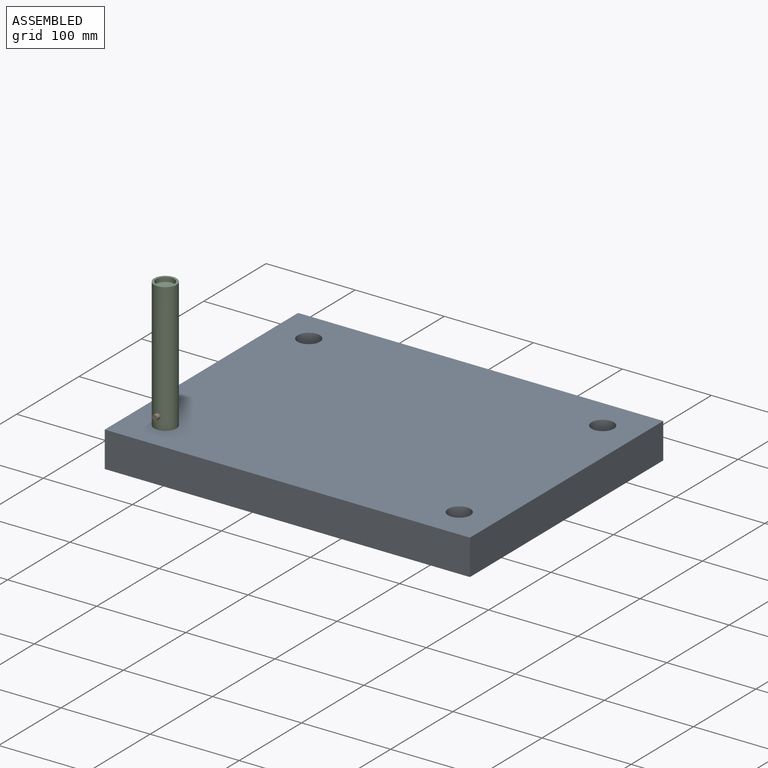
[diagram: assembled view]
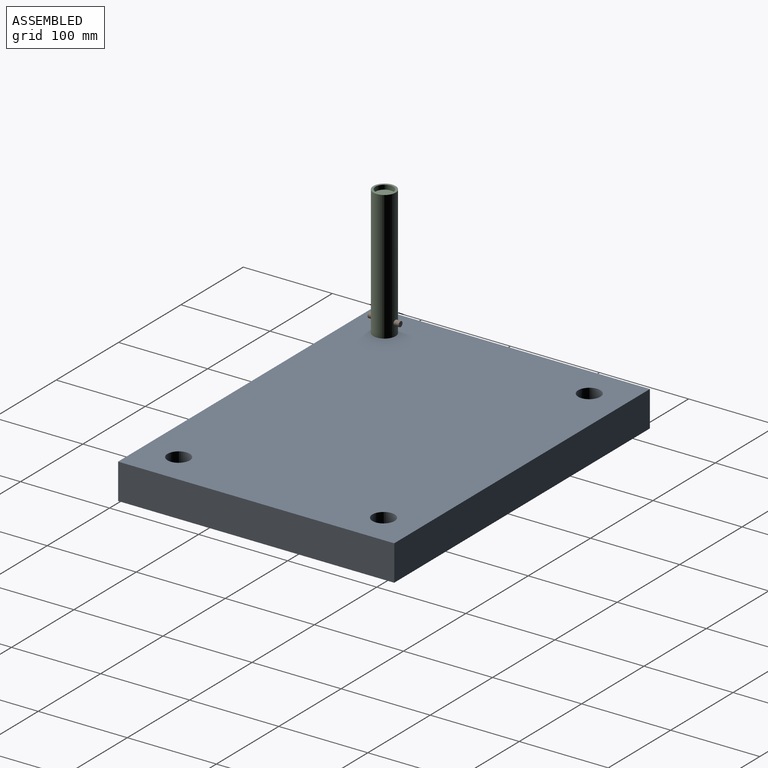
[diagram: assembled view, second angle]
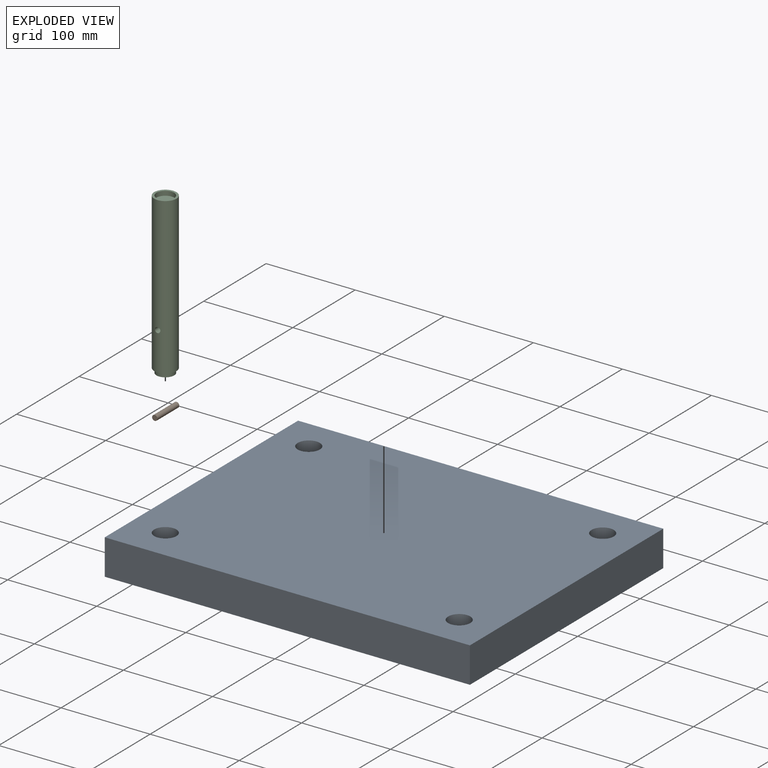
[diagram: exploded view]
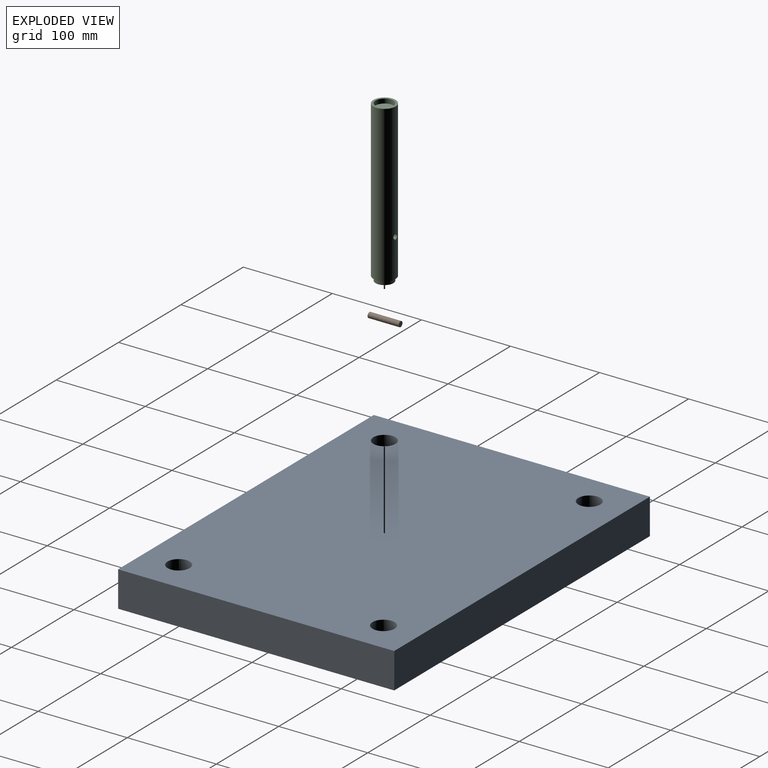
[diagram: exploded view, second angle]
ASSEMBLY  parts=3 mates=2
PART A: 111 faces, bbox 410x310x40 mm
  f0: plane 17.87x17.87mm, normal (0,0,-1), area 159.6mm2, adj f1,f2,f110
  f1: plane 35x17.87mm, normal (0,1,0), area 625.4mm2, adj f0,f2,f63,f110
  f2: plane 35x17.87mm, normal (-1,0,0), area 625.4mm2, adj f0,f1,f63,f110
  f3: plane 122.93x122.93mm, normal (0,0,-1), area 5393.1mm2, adj f4,f5,f8,f9,f104,f105,f107,f109
  f4: plane 35x31.48mm, normal (0,1,0), area 1101.9mm2, adj f3,f63,f107,f109
  f5: cylinder r=17.5mm len=35mm, axis (0,0,-1), area 2739mm2, adj f3,f63,f105,f107
  f6: plane 49.35x35.41mm, normal (0,0,-1), area 776.5mm2, adj f7,f67,f106,f108
  f7: plane 35x31.48mm, normal (0,1,0), area 1101.9mm2, adj f6,f63,f106,f108
  f8: plane 35x31.48mm, normal (0,1,0), area 1101.9mm2, adj f3,f63,f104,f105
  f9: plane 101.52x35mm, normal (-1,0,0), area 3553.3mm2, adj f3,f63,f104,f109
  f10: plane 157.94x157.94mm, normal (0,0,-1), area 4477.1mm2, adj f11,f12,f102,f103
  f11: plane 35x31.48mm, normal (0,1,0), area 1101.9mm2, adj f10,f63,f102,f103
  f12: plane 35x31.48mm, normal (-1,0,0), area 1101.9mm2, adj f10,f63,f102,f103
  f13: plane 192.96x192.96mm, normal (0,0,-1), area 5579.6mm2, adj f14,f15,f100,f101
  f14: plane 35x31.48mm, normal (0,1,0), area 1101.9mm2, adj f13,f63,f100,f101
  f15: plane 35x31.48mm, normal (-1,0,0), area 1101.9mm2, adj f13,f63,f100,f101
  f16: plane 227.98x227.98mm, normal (0,0,-1), area 6682.1mm2, adj f17,f18,f98,f99
  f17: plane 35x31.48mm, normal (0,1,0), area 1101.9mm2, adj f16,f63,f98,f99
  f18: plane 35x31.48mm, normal (-1,0,0), area 1101.9mm2, adj f16,f63,f98,f99
  f19: plane 263x263mm, normal (0,0,-1), area 7784.7mm2, adj f20,f21,f96,f97
  f20: plane 35x31.48mm, normal (0,1,0), area 1101.9mm2, adj f19,f63,f96,f97
  f21: plane 35x31.48mm, normal (-1,0,0), area 1101.9mm2, adj f19,f63,f96,f97
  f22: plane 35x31.48mm, normal (0,1,0), area 1101.9mm2, adj f24,f63,f94,f95
  f23: cylinder r=17.5mm len=35mm, axis (0,0,-1), area 3760.9mm2, adj f24,f63,f93,f94
  f24: plane 333.04x300mm, normal (0,0,-1), area 17536mm2, adj f22,f23,f25,f26,f64,f92,f93,f94
  f25: plane 35x33.04mm, normal (0,-1,0), area 1156.4mm2, adj f24,f63,f64,f92
  f26: plane 35x31.48mm, normal (0,1,0), area 1101.9mm2, adj f24,f63,f92,f93
  f27: plane 331.48x300mm, normal (0,0,-1), area 9445.1mm2, adj f28,f29,f90,f91
  f28: plane 35x31.48mm, normal (0,-1,0), area 1101.9mm2, adj f27,f63,f90,f91
  f29: plane 35x31.48mm, normal (0,1,0), area 1101.9mm2, adj f27,f63,f90,f91
  f30: plane 35x31.48mm, normal (0,-1,0), area 1101.9mm2, adj f32,f63,f87,f89
  f31: cylinder r=17.5mm len=35mm, axis (0,0,-1), area 3759.1mm2, adj f32,f63,f87,f88
  f32: plane 328.41x300mm, normal (0,0,-1), area 17377.5mm2, adj f30,f31,f33,f34,f69,f86,f87,f88
  f33: plane 35x31.48mm, normal (0,-1,0), area 1101.9mm2, adj f32,f63,f86,f88
  f34: plane 38.1x35mm, normal (1,0,0), area 1333.4mm2, adj f32,f63,f69,f86
  f35: plane 258.37x258.37mm, normal (0,0,-1), area 7638.7mm2, adj f36,f37,f84,f85
  f36: plane 35x31.48mm, normal (0,-1,0), area 1101.9mm2, adj f35,f63,f84,f85
  f37: plane 35x31.48mm, normal (1,0,0), area 1101.9mm2, adj f35,f63,f84,f85
  f38: plane 223.35x223.35mm, normal (0,0,-1), area 6536.2mm2, adj f39,f40,f82,f83
  f39: plane 35x31.48mm, normal (0,-1,0), area 1101.9mm2, adj f38,f63,f82,f83
  f40: plane 35x31.48mm, normal (1,0,0), area 1101.9mm2, adj f38,f63,f82,f83
  f41: plane 188.33x188.33mm, normal (0,0,-1), area 5433.6mm2, adj f42,f43,f80,f81
  f42: plane 35x31.48mm, normal (0,-1,0), area 1101.9mm2, adj f41,f63,f80,f81
  f43: plane 35x31.48mm, normal (1,0,0), area 1101.9mm2, adj f41,f63,f80,f81
  f44: plane 153.31x153.31mm, normal (0,0,-1), area 4331.1mm2, adj f45,f46,f77,f79
  f45: plane 35x31.48mm, normal (0,-1,0), area 1101.9mm2, adj f44,f63,f77,f79
  f46: plane 35x31.48mm, normal (1,0,0), area 1101.9mm2, adj f44,f63,f77,f79
  f47: plane 118.29x118.29mm, normal (0,0,-1), area 5011mm2, adj f48,f49,f52,f53,f72,f73,f76,f78
  f48: plane 35x31.48mm, normal (0,-1,0), area 1101.9mm2, adj f47,f63,f76,f78
  f49: cylinder r=17.5mm len=35mm, axis (0,0,-1), area 2733.8mm2, adj f47,f63,f73,f76
  f50: plane 35x31.48mm, normal (0,-1,0), area 1101.9mm2, adj f51,f63,f74,f75
  f51: plane 49x31.19mm, normal (0,0,-1), area 704.1mm2, adj f50,f68,f74,f75
  f52: plane 35x31.48mm, normal (0,-1,0), area 1101.9mm2, adj f47,f63,f72,f73
  f53: plane 101.52x35mm, normal (1,0,0), area 3553.3mm2, adj f47,f63,f72,f78
  f54: plane 310x40mm, normal (1,0,0), area 12400mm2, adj f55,f60,f62,f63
  f55: plane 410x40mm, normal (0,1,0), area 16400mm2, adj f54,f56,f62,f63
  f56: plane 310x40mm, normal (-1,0,0), area 12400mm2, adj f55,f60,f62,f63
  f57: cylinder r=12.5mm len=40mm, axis (0,0,-1), area 3141.6mm2, adj f62,f63
  f58: cylinder r=12.5mm len=40mm, axis (0,0,-1), area 3141.6mm2, adj f62,f63
  f59: cylinder r=12.5mm len=40mm, axis (0,0,-1), area 3141.6mm2, adj f62,f63
  f60: plane 410x40mm, normal (0,-1,0), area 16400mm2, adj f54,f56,f62,f63
  f61: cylinder r=12.5mm len=40mm, axis (0,0,-1), area 3141.6mm2, adj f62,f63
  f62: plane 410x310mm, normal (0,0,1), area 125136.5mm2, adj f54,f55,f56,f57,f58,f59,f60,f61
  f63: plane 410x310mm, normal (0,0,-1), area 20182.9mm2, adj f1,f2,f4,f5,f7,f8,f9,f11
  f64: plane 35x33.46mm, normal (-1,0,0), area 1171.2mm2, adj f24,f25,f63,f95
  f65: plane 35x13.23mm, normal (0,-1,0), area 463.1mm2, adj f63,f66,f70,f71
  f66: plane 35x13.23mm, normal (1,0,0), area 463.1mm2, adj f63,f65,f70,f71
  f67: cylinder r=17.5mm len=35mm, axis (0,0,-1), area 851.1mm2, adj f6,f63,f106,f108
  f68: cylinder r=17.5mm len=35mm, axis (0,0,-1), area 853.2mm2, adj f51,f63,f74,f75
  f69: plane 35x28.41mm, normal (0,1,0), area 994.2mm2, adj f32,f34,f63,f89
  f70: plane 13.23x13.23mm, normal (0,0,-1), area 87.5mm2, adj f65,f66,f71
  f71: plane 35x13.23mm, normal (-0.71,0.71,0), area 655mm2, adj f63,f65,f66,f70
  f72: plane 35x16.77mm, normal (0.71,-0.71,0), area 830mm2, adj f47,f52,f53,f63
  f73: plane 35x18.22mm, normal (-0.71,0.71,0), area 901.9mm2, adj f47,f49,f52,f63
  f74: plane 35x17.52mm, normal (0.71,-0.71,0), area 867mm2, adj f50,f51,f63,f68
  f75: plane 35x31.19mm, normal (-0.71,0.71,0), area 1543.8mm2, adj f50,f51,f63,f68
  f76: plane 35x34.32mm, normal (0.71,-0.71,0), area 1698.7mm2, adj f47,f48,f49,f63
  f77: plane 121.83x121.83mm, normal (0.71,-0.71,0), area 6030mm2, adj f44,f45,f46,f63
  f78: plane 118.29x118.29mm, normal (-0.71,0.71,0), area 5855mm2, adj f47,f48,f53,f63
  f79: plane 153.31x153.31mm, normal (-0.71,0.71,0), area 7588.4mm2, adj f44,f45,f46,f63
  f80: plane 156.84x156.84mm, normal (0.71,-0.71,0), area 7763.4mm2, adj f41,f42,f43,f63
  f81: plane 188.33x188.33mm, normal (-0.71,0.71,0), area 9321.8mm2, adj f41,f42,f43,f63
  f82: plane 191.86x191.86mm, normal (0.71,-0.71,0), area 9496.8mm2, adj f38,f39,f40,f63
  f83: plane 223.35x223.35mm, normal (-0.71,0.71,0), area 11055.1mm2, adj f38,f39,f40,f63
  f84: plane 226.88x226.88mm, normal (0.71,-0.71,0), area 11230.1mm2, adj f35,f36,f37,f63
  f85: plane 258.37x258.37mm, normal (-0.71,0.71,0), area 12788.5mm2, adj f35,f36,f37,f63
  f86: plane 261.9x261.9mm, normal (0.71,-0.71,0), area 12963.5mm2, adj f32,f33,f34,f63
  f87: plane 251.18x251.18mm, normal (0.71,-0.71,0), area 12432.9mm2, adj f30,f31,f32,f63
  f88: plane 249.77x249.77mm, normal (-0.71,0.71,0), area 12362.9mm2, adj f31,f32,f33,f63
  f89: plane 300x300mm, normal (-0.71,0.71,0), area 14849.2mm2, adj f30,f32,f63,f69
  f90: plane 300x300mm, normal (0.71,-0.71,0), area 14849.2mm2, adj f27,f28,f29,f63
  f91: plane 300x300mm, normal (-0.71,0.71,0), area 14849.2mm2, adj f27,f28,f29,f63
  f92: plane 300x300mm, normal (0.71,-0.71,0), area 14849.2mm2, adj f24,f25,f26,f63
  f93: plane 253.43x253.43mm, normal (-0.71,0.71,0), area 12544.1mm2, adj f23,f24,f26,f63
  f94: plane 251.68x251.68mm, normal (0.71,-0.71,0), area 12457.3mm2, adj f22,f23,f24,f63
  f95: plane 266.54x266.54mm, normal (-0.71,0.71,0), area 13192.9mm2, adj f22,f24,f63,f64
  f96: plane 263x263mm, normal (0.71,-0.71,0), area 13017.9mm2, adj f19,f20,f21,f63
  f97: plane 231.52x231.52mm, normal (-0.71,0.71,0), area 11459.6mm2, adj f19,f20,f21,f63
  f98: plane 227.98x227.98mm, normal (0.71,-0.71,0), area 11284.6mm2, adj f16,f17,f18,f63
  f99: plane 196.5x196.5mm, normal (-0.71,0.71,0), area 9726.2mm2, adj f16,f17,f18,f63
  f100: plane 192.96x192.96mm, normal (0.71,-0.71,0), area 9551.2mm2, adj f13,f14,f15,f63
  f101: plane 161.48x161.48mm, normal (-0.71,0.71,0), area 7992.8mm2, adj f13,f14,f15,f63
  f102: plane 157.94x157.94mm, normal (0.71,-0.71,0), area 7817.8mm2, adj f10,f11,f12,f63
  f103: plane 126.46x126.46mm, normal (-0.71,0.71,0), area 6259.5mm2, adj f10,f11,f12,f63
  f104: plane 122.93x122.93mm, normal (0.71,-0.71,0), area 6084.5mm2, adj f3,f8,f9,f63
  f105: plane 39.54x39.54mm, normal (-0.71,0.71,0), area 1957.2mm2, adj f3,f5,f8,f63
  f106: plane 35.41x35.41mm, normal (0.71,-0.71,0), area 1752.7mm2, adj f6,f7,f63,f67
  f107: plane 35x17.5mm, normal (0.71,-0.71,0), area 866.4mm2, adj f3,f4,f5,f63
  f108: plane 35x17.87mm, normal (-0.71,0.71,0), area 884.3mm2, adj f6,f7,f63,f67
  f109: plane 35x21.4mm, normal (-0.71,0.71,0), area 1059.4mm2, adj f3,f4,f9,f63
  f110: plane 35x17.87mm, normal (0.71,-0.71,0), area 884.4mm2, adj f0,f1,f2,f63
PART B: 3 faces, bbox 6x35x6 mm
  f0: cylinder r=3mm len=35mm, axis (0,-1,0), area 659.7mm2, adj f1,f2
  f1: plane 6x6mm, normal (0,1,0), area 28.3mm2, adj f0
  f2: plane 6x6mm, normal (0,-1,0), area 28.3mm2, adj f0
PART C: 8 faces, bbox 25x25x180 mm
  f0: cylinder r=12.5mm len=175mm, axis (0,0,-1), area 13687.4mm2, adj f1,f2,f7
  f1: plane 25x25mm, normal (0,0,1), area 176.7mm2, adj f0,f3
  f2: plane 25x25mm, normal (0,0,-1), area 176.7mm2, adj f0,f5
  f3: cylinder r=10mm len=20mm, axis (0,0,1), area 314.2mm2, adj f1,f4
  f4: plane 20x20mm, normal (0,0,1), area 314.2mm2, adj f3
  f5: cylinder r=10mm len=20mm, axis (0,0,1), area 314.2mm2, adj f2,f6
  f6: plane 20x20mm, normal (0,0,-1), area 314.2mm2, adj f5
  f7: cylinder r=3mm len=25mm, axis (0,-1,0), area 464.4mm2, adj f0
PLACE A t=(84.44,-2.74,224.98)mm
PLACE B t=(84.44,20.35,235.68)mm
PLACE C t=(84.44,-2.74,235.68)mm
MATE slider B.f0 <-> C.f7  axis (0,-1,0) through (-80.56,-134.65,278.68)mm
MATE slider A.f31 <-> C.f0  axis (0,0,1) through (-80.56,-117.74,264.98)mm
